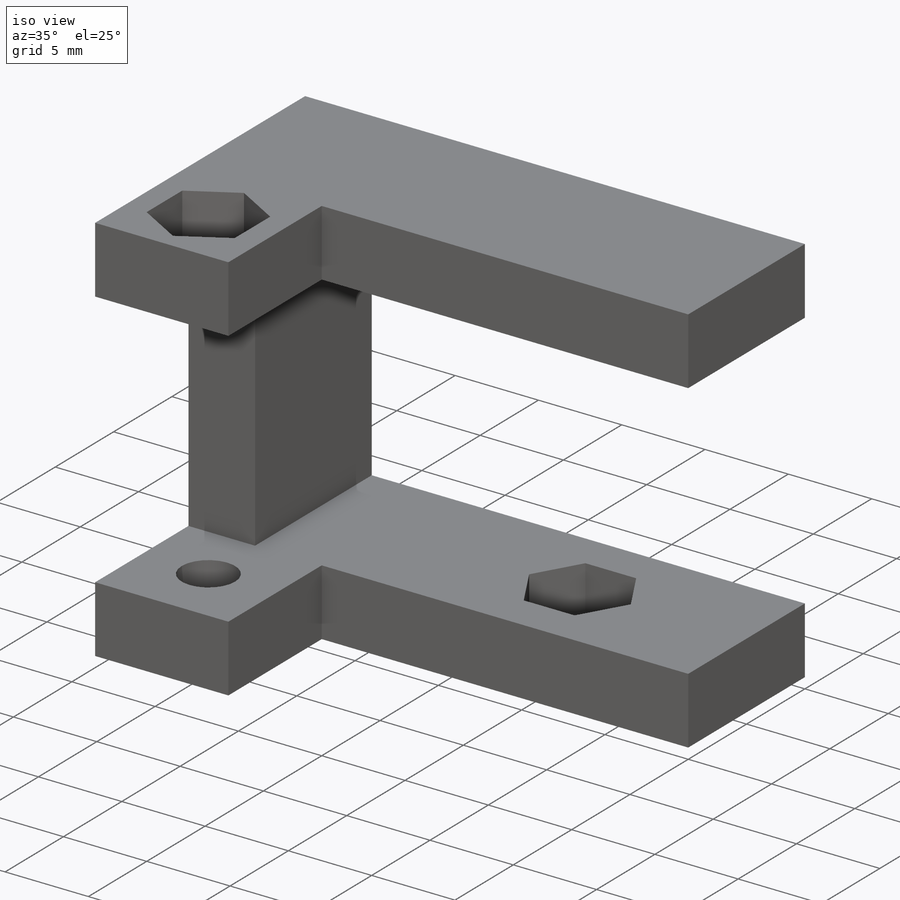
[diagram: iso view]
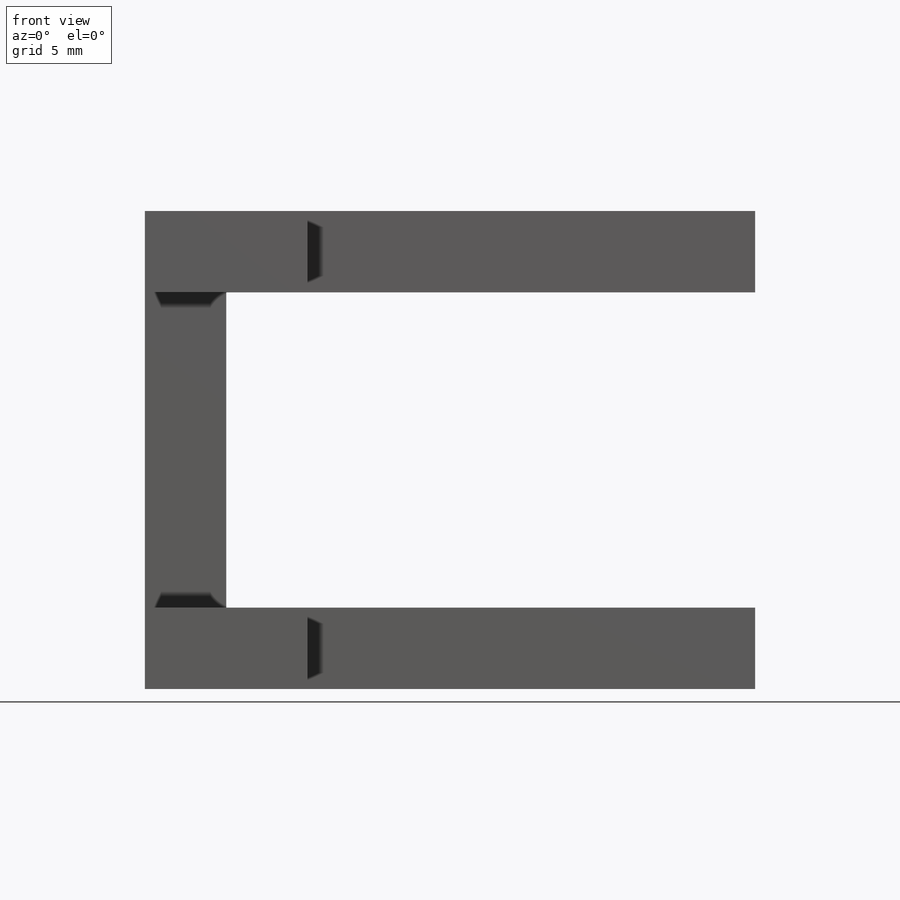
[diagram: front view]
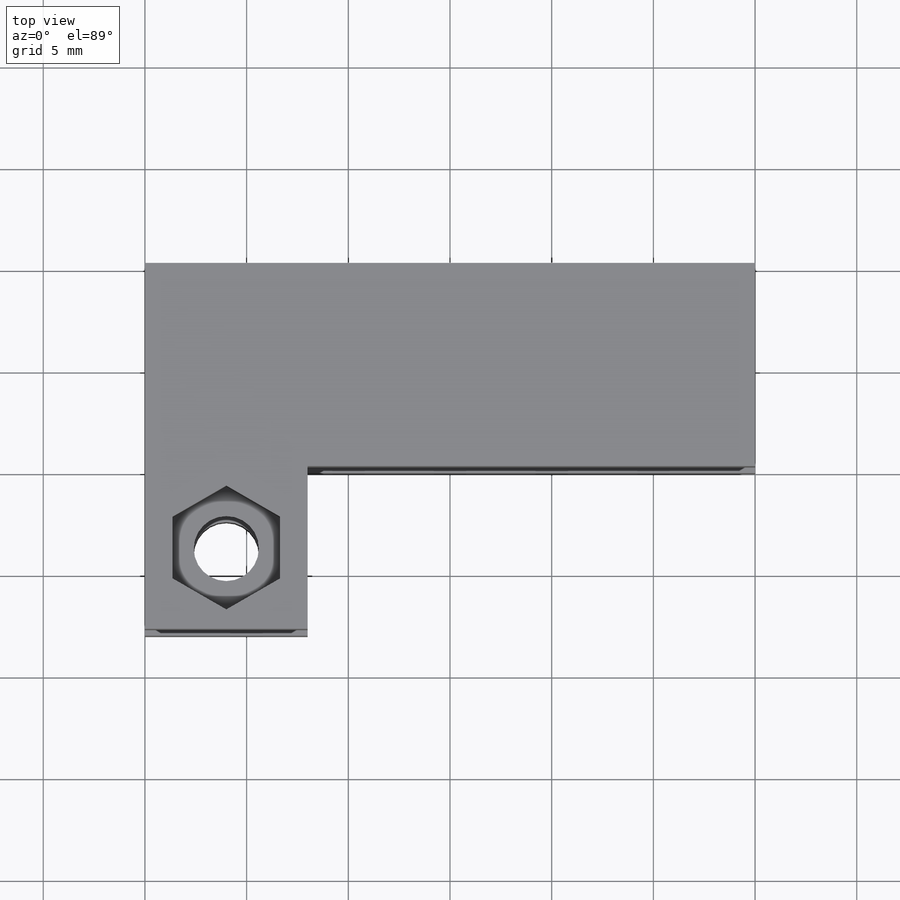
[diagram: top view]
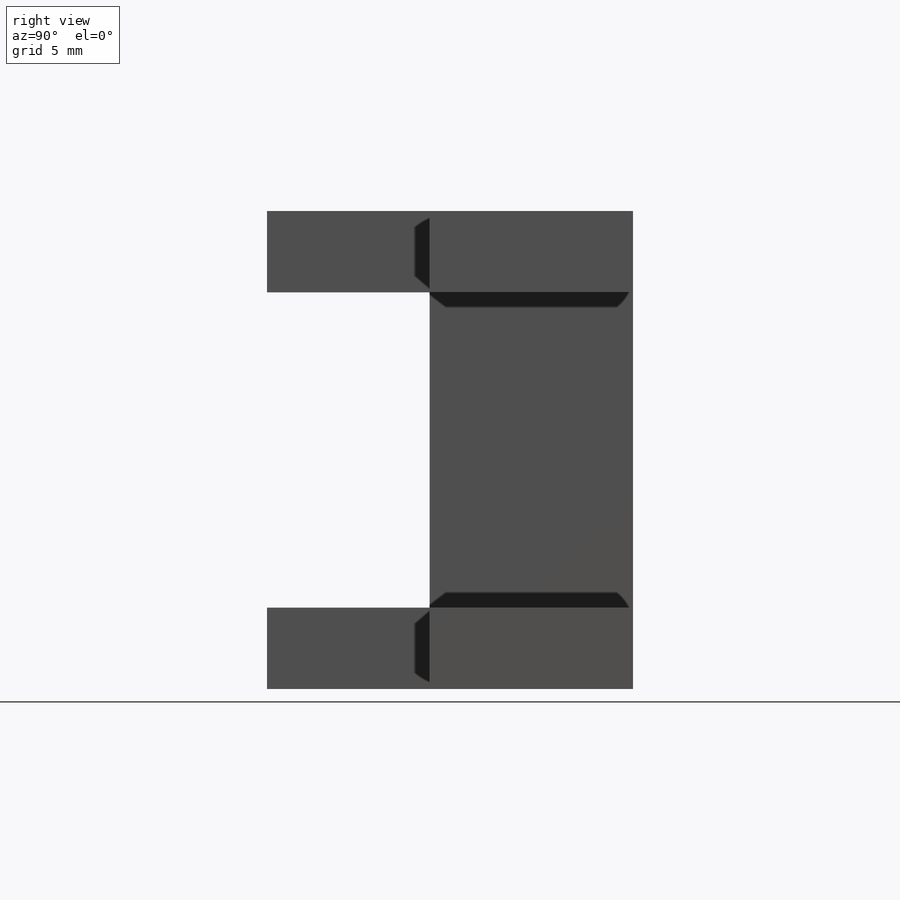
[diagram: right view]
SOLIDWORKS PART (.sldprt)
format: sldprt  version: not decoded by parser v0  size: 213,504 bytes
history: native  units: mm
features: sketch x6, cut_extrude x4, plane x3, extrude x2, material x1 (+8 scaffold rows collapsed)
feature tree (24):
  scaffold x8  (default folders/planes/origin — collapsed)
  material  "Material <sin especificar>"
  plane  "Alzado"
  plane  "Planta"
  plane  "Vista lateral"
  sketch  "Croquis1"  dims[D1=30.0mm D2=4.0mm D3=4.0mm D4=4.0mm D5=15.5mm]
  extrude  "Saliente-Extruir1"  Depth=10mm
  sketch  "Croquis3"  dims[D1=3.2mm D2=10.0mm]
  cut_extrude  "Cortar-Extruir2"  [1 undecoded]
  sketch  "Croquis5"  dims[D1=6.1mm]
  cut_extrude  "Cortar-Extruir3"  Depth=2.95mm
  sketch  "Croquis6"  dims[D1=8.0mm D2=8.0mm]
  extrude  "Saliente-Extruir2"  Depth=8mm
  sketch  "Croquis7"  dims[c1.D1=6.1mm c1.D2=6.1mm c2.D1=6.1mm c2.D2=4.0mm]
  cut_extrude  "Cortar-Extruir4"  Depth=2.9mm
  sketch  "Croquis8"  dims[D1=3.2mm]
  cut_extrude  "Cortar-Extruir5"  [1 undecoded]
decode coverage: 10 of 12 modeling features carry decoded parameters
note: 2 parameter values undecoded
note: suppression state not decoded; provenance and decode notes live in map.json
